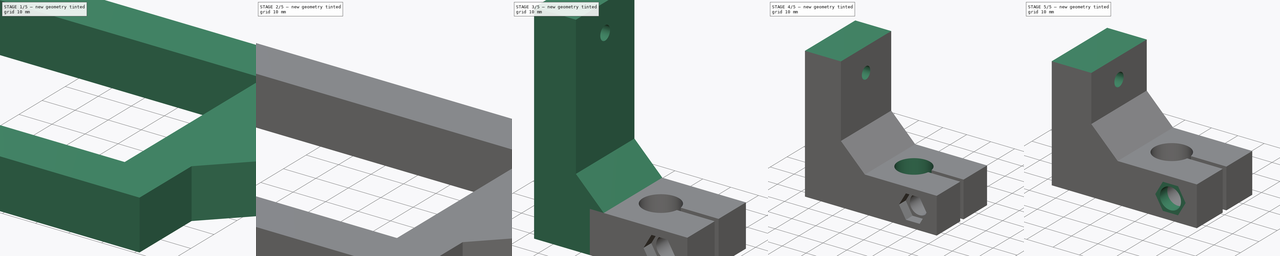
[diagram: build sequence overview — one tinted view per stage of 5, left to right]
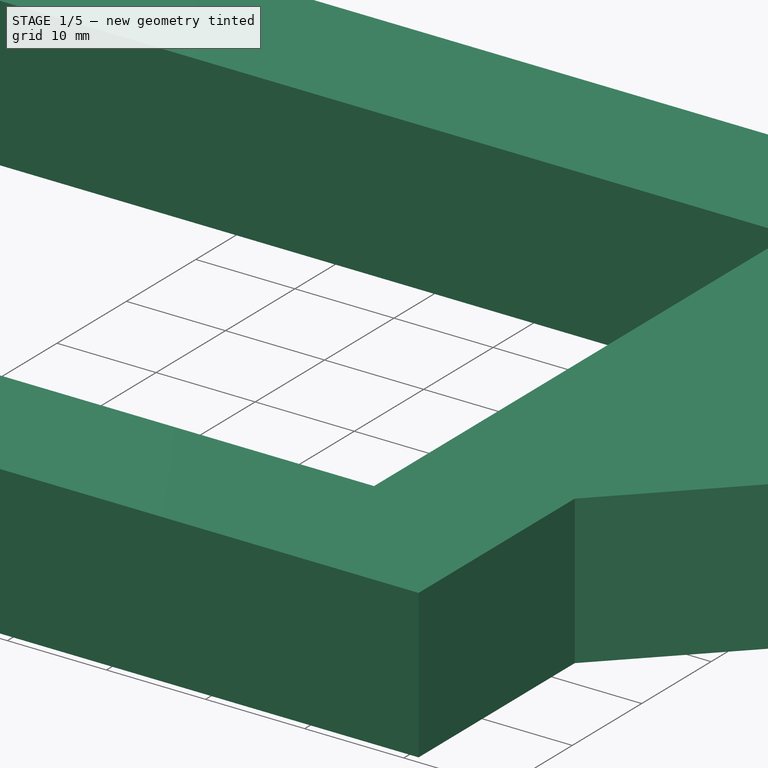
[diagram: stage 1 of 5 — iso view after this stage's code; geometry added in this stage tinted green]
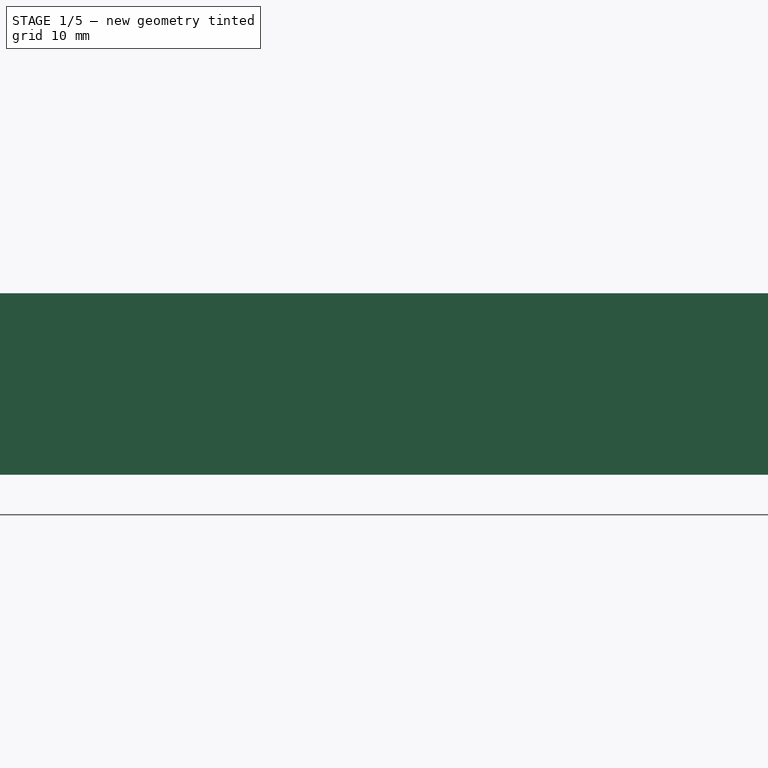
[diagram: stage 1 of 5 — front view after this stage's code; geometry added in this stage tinted green]
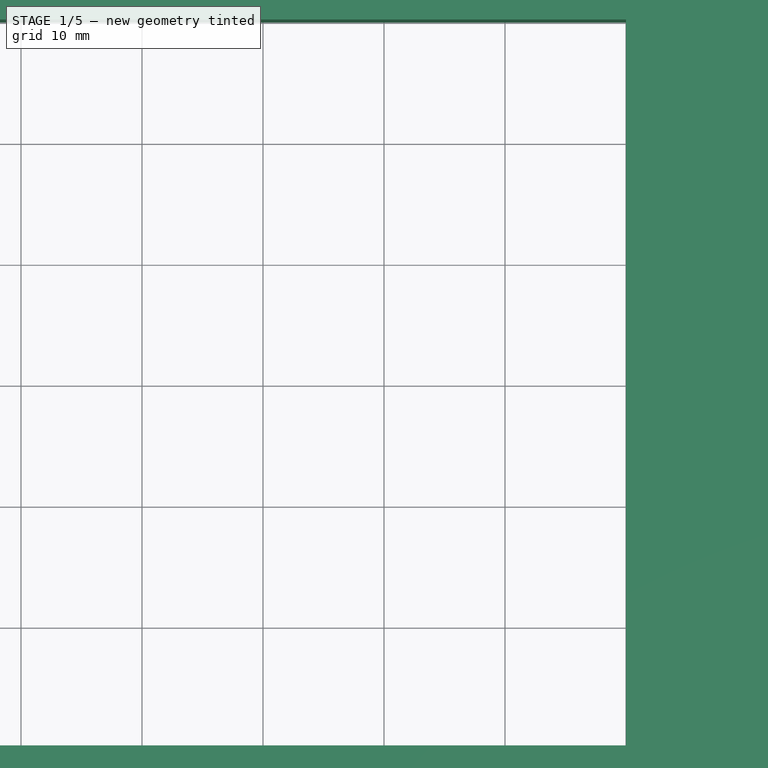
[diagram: stage 1 of 5 — top view after this stage's code; geometry added in this stage tinted green]
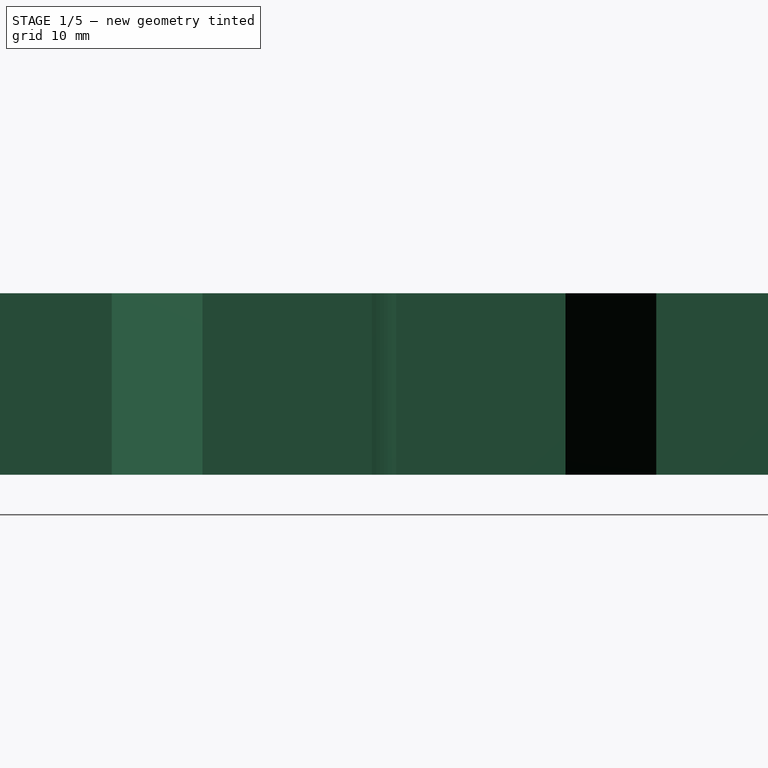
[diagram: stage 1 of 5 — right view after this stage's code; geometry added in this stage tinted green]
FCSTD DOCUMENT  (FreeCAD 0.16R6712 (Git))
Label: LCM camholder10
License: All rights reserved
LicenseURL: http://en.wikipedia.org/wiki/All_rights_reserved
objects: Sketcher::SketchObject×21, PartDesign::Pocket×12, PartDesign::Pad×9
note: 63 computed .brp shape members not serialized (recipe doc carries the construction recipe); baked Part::Feature solids carry a one-line shape summary decoded from their .brp

FEATURE [Sketcher::SketchObject] Sketch
  sketch-geometry (24):
    g0: ArcOfCircle CenterX=0 CenterY=0 CenterZ=0 NormalX=0 NormalY=0 NormalZ=1 Radius=6.5 StartAngle=0.15446 EndAngle=6.12873
    g1: LineSegment StartX=-15 StartY=15 StartZ=0 EndX=20 EndY=15 EndZ=0
    g2: LineSegment StartX=20 StartY=15 StartZ=0 EndX=20 EndY=1 EndZ=0
    g3: LineSegment StartX=20 StartY=-15 StartZ=0 EndX=-15 EndY=-15 EndZ=0
    g4: LineSegment StartX=-15 StartY=-15 StartZ=0 EndX=-15 EndY=-7.5 EndZ=0
    g5: LineSegment StartX=6.42262 StartY=1 StartZ=0 EndX=20 EndY=1 EndZ=0
    g6: LineSegment StartX=6.42262 StartY=-1 StartZ=0 EndX=20 EndY=-1 EndZ=0
    g7: LineSegment StartX=20 StartY=-1 StartZ=0 EndX=20 EndY=-15 EndZ=0
    g8: LineSegment StartX=-30 StartY=7.5 StartZ=0 EndX=-15 EndY=7.5 EndZ=0
    g9: LineSegment StartX=-30 StartY=-7.5 StartZ=0 EndX=-15 EndY=-7.5 EndZ=0
    g10: LineSegment StartX=-45 StartY=22.5 StartZ=0 EndX=-45 EndY=45 EndZ=0
    g11: LineSegment StartX=-45 StartY=-22.5 StartZ=0 EndX=-45 EndY=-45 EndZ=0
    g12: LineSegment StartX=-60 StartY=30 StartZ=0 EndX=-60 EndY=2.33041 EndZ=0
    g13: LineSegment StartX=-60 StartY=-7.21716 StartZ=0 EndX=-60 EndY=-30 EndZ=0
    g14: LineSegment StartX=-180 StartY=45 StartZ=0 EndX=-45 EndY=45 EndZ=0
    g15: LineSegment StartX=-180 StartY=-45 StartZ=0 EndX=-45 EndY=-45 EndZ=0
    g16: LineSegment StartX=-180 StartY=45 StartZ=0 EndX=-180 EndY=-45 EndZ=0
    g17: LineSegment StartX=-165 StartY=30 StartZ=0 EndX=-60 EndY=30 EndZ=0
    g18: LineSegment StartX=-165 StartY=-30 StartZ=0 EndX=-60 EndY=-30 EndZ=0
    g19: LineSegment StartX=-165 StartY=30 StartZ=0 EndX=-165 EndY=-30 EndZ=0
    g20: LineSegment StartX=-15 StartY=7.5 StartZ=0 EndX=-15 EndY=15 EndZ=0
    g21: LineSegment StartX=-60 StartY=2.33041 StartZ=0 EndX=-60 EndY=-7.21716 EndZ=0
    g22: LineSegment StartX=-45 StartY=22.5 StartZ=0 EndX=-30 EndY=7.5 EndZ=0
    g23: LineSegment StartX=-45 StartY=-22.5 StartZ=0 EndX=-30 EndY=-7.5 EndZ=0
  constraints (68):
    c: Coincident(g0,g-1)
    c: Radius(g0) = 6.5
    c: Coincident(g1,g2)
    c: Coincident(g7,g3)
    c: Coincident(g3,g4)
    c: Coincident(g20,g1)
    c: Horizontal(g1)
    c: Horizontal(g3)
    c: Vertical(g2)
    c: Vertical(g4)
    c: DistanceY(g7,g2) = 30
    c: DistanceY(g-1,g1) = 15
    c: DistanceX(g1,g1) = 35
    c: DistanceX(g1,g-1) = 15
    c: Horizontal(g5)
    c: Horizontal(g6)
    c: Coincident(g2,g5)
    c: Coincident(g7,g6)
    c: Tangent(g2,g7)
    c: Coincident(g0,g5)
    c: Coincident(g0,g6)
    c: Horizontal(g8)
    c: Horizontal(g9)
    c: DistanceX(g12,g-1) = 60
    c: DistanceX(g13,g-1) = 60
    c: Vertical(g10)
    c: Vertical(g11)
    c: DistanceY(g-1,g10) = 45
    c: DistanceY(g11,g-1) = 45
    c: Vertical(g12)
    c: Vertical(g13)
    c: DistanceY(g12,g10) = 15
    c: DistanceY(g11,g13) = 15
    c: Horizontal(g14)
    c: Coincident(g14,g10)
    c: DistanceX(g14,g-1) = 180
    c: Horizontal(g15)
    c: Coincident(g15,g11)
    c: DistanceX(g15,g-1) = 180
    c: Vertical(g16)
    c: Coincident(g16,g14)
    c: Coincident(g16,g15)
    c: Horizontal(g17)
    c: Coincident(g17,g12)
    c: DistanceX(g14,g17) = 15
    c: Horizontal(g18)
    c: Coincident(g18,g13)
    c: DistanceX(g15,g18) = 15
    c: Vertical(g19)
    c: Coincident(g19,g17)
    c: Coincident(g18,g19)
    c: Coincident(g4,g9)
    c: Coincident(g20,g8)
    c: Tangent(g4,g20)
    c: Vertical(g21)
    c: Coincident(g21,g12)
    c: Coincident(g21,g13)
    c: DistanceX(g12,g10) = 15
    c: DistanceX(g13,g11) = 15
    c: Angle(g22) = -0.785398
    c: DistanceY(g-1,g8) = 7.5
    c: DistanceY(g4,g-1) = 7.5
    c: Coincident(g8,g22)
    c: Coincident(g10,g22)
    c: Angle(g23) = 0.785398
    c: DistanceY(g23,g4) = 0
    c: PointOnObject(g9,g23)
    c: Coincident(g11,g23)
FEATURE [PartDesign::Pad] Pad
  Length = 15
  Length2 = 100
  Sketch = -> Sketch
  Type = 0
FEATURE [Sketcher::SketchObject] Sketch001
  ExternalGeometry = -> [Pad]
  Placement = pos=(0,0,15) rot=(0,0,1;0rad)
  Support = -> Pad [Face26]
  sketch-geometry (6):
    g0: LineSegment StartX=-165 StartY=30 StartZ=0 EndX=-165 EndY=20 EndZ=0
    g1: LineSegment StartX=-150 StartY=30 StartZ=0 EndX=-165 EndY=20 EndZ=0
    g2: LineSegment StartX=-165 StartY=30 StartZ=0 EndX=-150 EndY=30 EndZ=0
    g3: LineSegment StartX=-165 StartY=-20 StartZ=0 EndX=-165 EndY=-30 EndZ=0
    g4: LineSegment StartX=-165 StartY=-30 StartZ=0 EndX=-150 EndY=-30 EndZ=0
    g5: LineSegment StartX=-165 StartY=-20 StartZ=0 EndX=-150 EndY=-30 EndZ=0
  constraints (16):
    c: Vertical(g0)
    c: Horizontal(g2)
    c: Coincident(g2,g0)
    c: Coincident(g2,g1)
    c: Coincident(g0,g1)
    c: DistanceY(g0,g0) = 10
    c: DistanceX(g2,g2) = 15
    c: Coincident(g0,g-3)
    c: Vertical(g3)
    c: Horizontal(g4)
    c: Coincident(g3,g4)
    c: Coincident(g3,g5)
    c: Coincident(g4,g5)
    c: DistanceX(g4,g4) = 15
    c: DistanceY(g3,g3) = 10
    c: Coincident(g3,g-3)
FEATURE [PartDesign::Pad] Pad001
  Length = 15
  Length2 = 100
  Reversed = true
  Sketch = -> Sketch001
  Type = 0
FEATURE [Sketcher::SketchObject] Sketch002
  ExternalGeometry = -> [Pad001]
  Placement = pos=(0,-15,0) rot=(1,0,0;1.5708rad)
  Support = -> Pad001 [Face20]
  sketch-geometry (1):
    g0: Circle CenterX=10 CenterY=7.5 CenterZ=0 NormalX=0 NormalY=0 NormalZ=1 Radius=4
  constraints (3):
    c: Radius(g0) = 4
    c: DistanceX(g0,g-3) = 10
    c: DistanceY(g-3,g0) = 7.5
FEATURE [PartDesign::Pocket] Pocket
  Length = 30
  Sketch = -> Sketch002
  Type = 0
FEATURE [Sketcher::SketchObject] Sketch003
  ExternalGeometry = -> [Pocket]
  Placement = pos=(0,-15,0) rot=(1,0,0;1.5708rad)
  Support = -> Pocket [Face20]
  sketch-geometry (7):
    g0: LineSegment StartX=12.875 StartY=2.52035 StartZ=0 EndX=15.75 EndY=7.5 EndZ=0
    g1: LineSegment StartX=15.75 StartY=7.5 StartZ=0 EndX=12.875 EndY=12.4796 EndZ=0
    g2: LineSegment StartX=12.875 StartY=12.4796 StartZ=0 EndX=7.125 EndY=12.4796 EndZ=0
    g3: LineSegment StartX=7.125 StartY=12.4796 StartZ=0 EndX=4.25 EndY=7.5 EndZ=0
    g4: LineSegment StartX=4.25 StartY=7.5 StartZ=0 EndX=7.125 EndY=2.52035 EndZ=0
    g5: LineSegment StartX=7.125 StartY=2.52035 StartZ=0 EndX=12.875 EndY=2.52035 EndZ=0
    g6: Circle [constr] CenterX=10 CenterY=7.5 CenterZ=0 NormalX=0 NormalY=0 NormalZ=1 Radius=5.75
  constraints (16):
    c: Coincident(g0,g1)
    c: Coincident(g1,g2)
    c: Coincident(g2,g3)
    c: Coincident(g3,g4)
    c: Coincident(g4,g5)
    c: Coincident(g5,g0)
    c: Equal(g0, g1-g5) x5
    c: PointOnObject(g0,g6)
    c: PointOnObject(g1,g6)
    c: PointOnObject(g2,g6)
    c: PointOnObject(g3,g6)
    c: PointOnObject(g4,g6)
    c: PointOnObject(g5,g6)
    c: Radius(g6) = 5.75
    c: Coincident(g6,g-3)
    c: Angle(g2) = 3.14159
FEATURE [PartDesign::Pocket] Pocket001
  Length = 4
  Sketch = -> Sketch003
  Type = 0
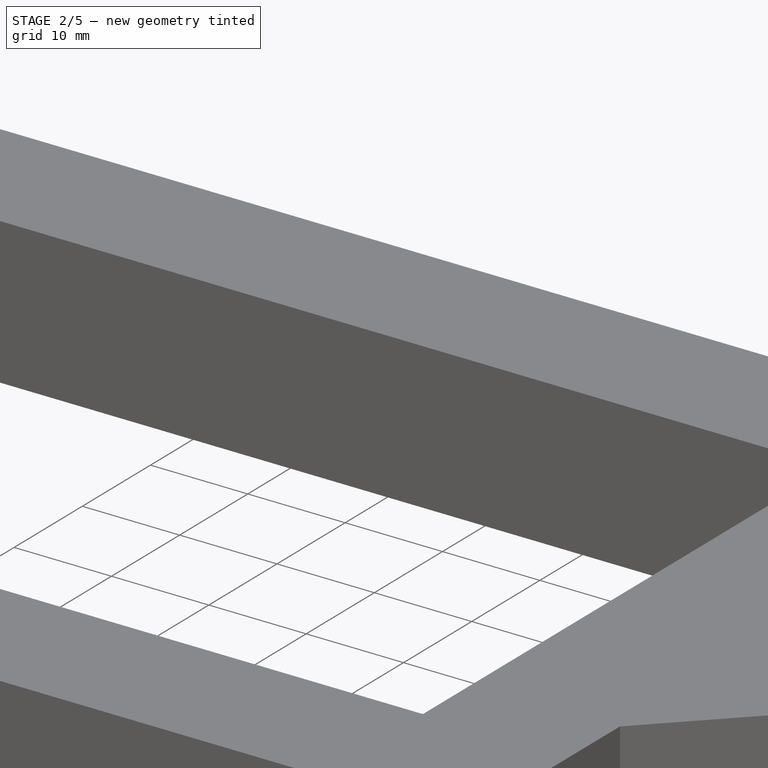
[diagram: stage 2 of 5 — iso view after this stage's code; geometry added in this stage tinted green]
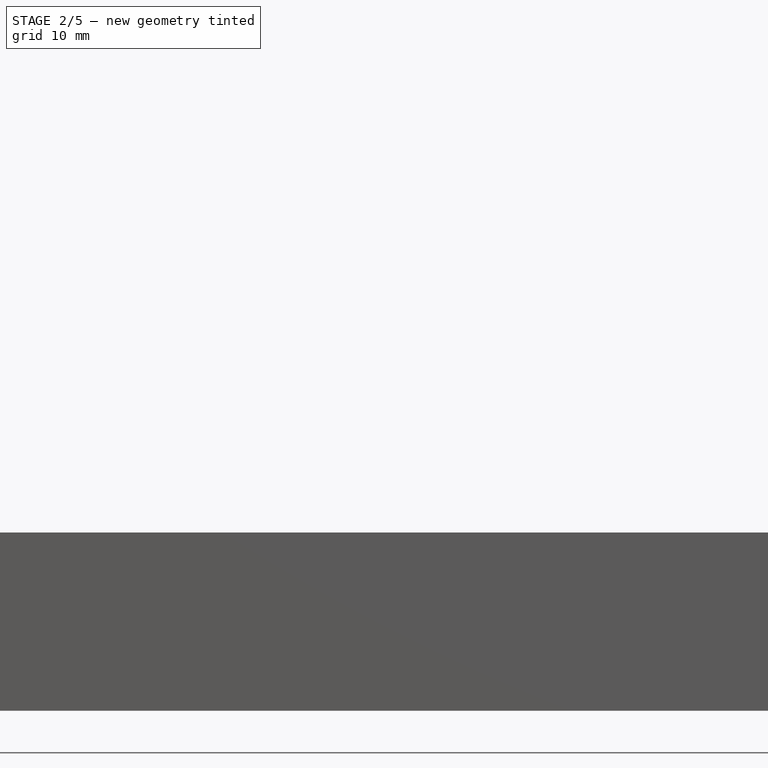
[diagram: stage 2 of 5 — front view after this stage's code; geometry added in this stage tinted green]
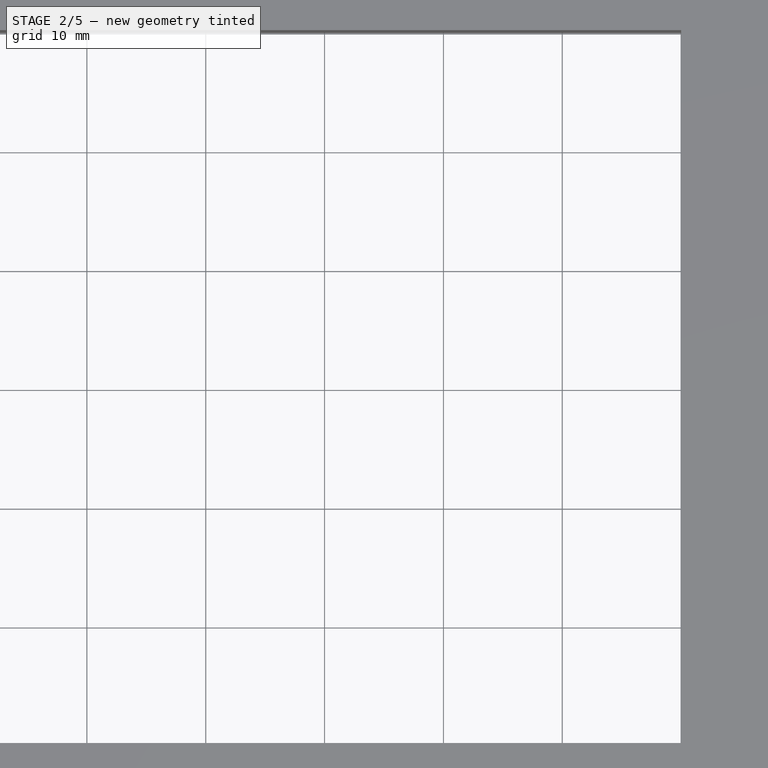
[diagram: stage 2 of 5 — top view after this stage's code; geometry added in this stage tinted green]
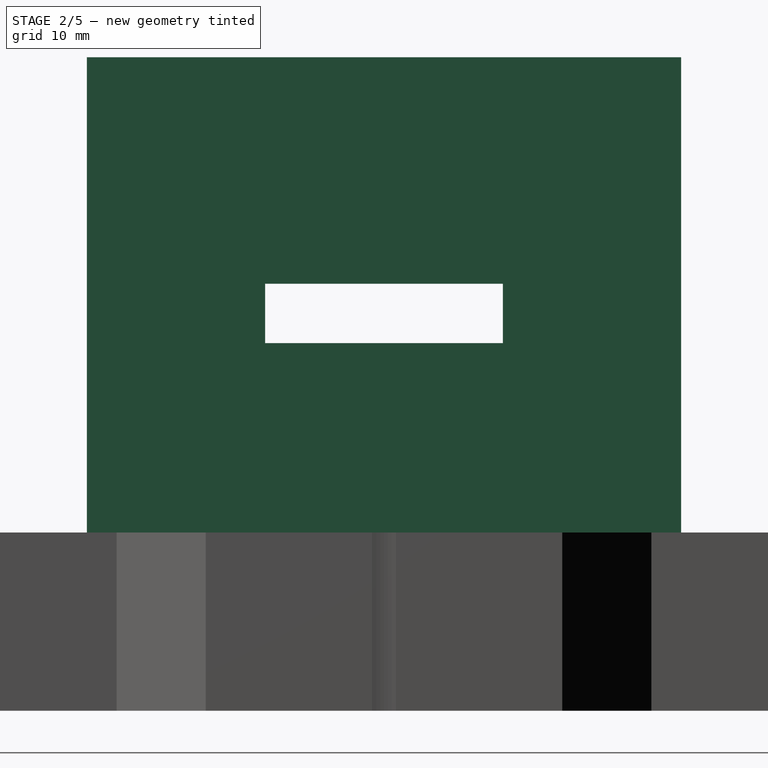
[diagram: stage 2 of 5 — right view after this stage's code; geometry added in this stage tinted green]
FEATURE [Sketcher::SketchObject] Sketch004
  ExternalGeometry = -> [Pocket001]
  Placement = pos=(0,0,15) rot=(0,0,1;0rad)
  Support = -> Pocket001 [Face5]
  sketch-geometry (4):
    g0: LineSegment StartX=-180 StartY=25 StartZ=0 EndX=-165 EndY=25 EndZ=0
    g1: LineSegment StartX=-165 StartY=25 StartZ=0 EndX=-165 EndY=-25 EndZ=0
    g2: LineSegment StartX=-165 StartY=-25 StartZ=0 EndX=-180 EndY=-25 EndZ=0
    g3: LineSegment StartX=-180 StartY=-25 StartZ=0 EndX=-180 EndY=25 EndZ=0
  constraints (12):
    c: Coincident(g0,g1)
    c: Coincident(g1,g2)
    c: Coincident(g2,g3)
    c: Coincident(g3,g0)
    c: Horizontal(g0)
    c: Horizontal(g2)
    c: Vertical(g1)
    c: Vertical(g3)
    c: DistanceX(g2,g2) = 15
    c: DistanceY(g1,g1) = 50
    c: DistanceX(g-3,g0) = 0
    c: DistanceY(g-1,g0) = 25
FEATURE [PartDesign::Pad] Pad002
  Length = 40
  Length2 = 100
  Sketch = -> Sketch004
  Type = 0
FEATURE [Sketcher::SketchObject] Sketch005
  ExternalGeometry = -> [Pad002]
  Placement = pos=(0,25,0) rot=(0,0.707107,0.707107;3.14159rad)
  Support = -> Pad002 [Face29]
  sketch-geometry (4):
    g0: LineSegment StartX=180 StartY=25 StartZ=0 EndX=190 EndY=15 EndZ=0
    g1: LineSegment StartX=180 StartY=0 StartZ=0 EndX=190 EndY=0 EndZ=0
    g2: LineSegment StartX=190 StartY=15 StartZ=0 EndX=190 EndY=0 EndZ=0
    g3: LineSegment StartX=180 StartY=25 StartZ=0 EndX=180 EndY=0 EndZ=0
  constraints (11):
    c: Horizontal(g1)
    c: Vertical(g2)
    c: Coincident(g2,g1)
    c: DistanceY(g2,g2) = 15
    c: Coincident(g0,g2)
    c: Vertical(g3)
    c: Coincident(g3,g0)
    c: Coincident(g1,g3)
    c: DistanceY(g0,g0) = 10
    c: DistanceX(g1,g1) = 10
    c: Coincident(g1,g-3)
FEATURE [PartDesign::Pad] Pad003
  Length = 50
  Length2 = 100
  Reversed = true
  Sketch = -> Sketch005
  Type = 0
FEATURE [Sketcher::SketchObject] Sketch006
  Placement = pos=(-165,0,0) rot=(0.57735,0.57735,0.57735;2.0944rad)
  Support = -> Pad003 [Face47]
  sketch-geometry (4):
    g0: LineSegment StartX=-10 StartY=35.9344 StartZ=0 EndX=10 EndY=35.9344 EndZ=0
    g1: LineSegment StartX=10 StartY=35.9344 StartZ=0 EndX=10 EndY=30.9344 EndZ=0
    g2: LineSegment StartX=10 StartY=30.9344 StartZ=0 EndX=-10 EndY=30.9344 EndZ=0
    g3: LineSegment StartX=-10 StartY=30.9344 StartZ=0 EndX=-10 EndY=35.9344 EndZ=0
  constraints (11):
    c: Coincident(g0,g1)
    c: Coincident(g1,g2)
    c: Coincident(g2,g3)
    c: Coincident(g3,g0)
    c: Horizontal(g0)
    c: Horizontal(g2)
    c: Vertical(g1)
    c: Vertical(g3)
    c: DistanceY(g3,g3) = 5
    c: DistanceX(g0,g0) = 20
    c: DistanceX(g0,g-1) = 10
FEATURE [PartDesign::Pocket] Pocket002
  Length = 15
  Sketch = -> Sketch006
  Type = 0
FEATURE [Sketcher::SketchObject] Sketch007
  Placement = pos=(-165,0,0) rot=(0.57735,0.57735,0.57735;2.0944rad)
  Support = -> Pocket002 [Face47]
  sketch-geometry (4):
    g0: LineSegment StartX=-15 StartY=37.3915 StartZ=0 EndX=15 EndY=37.3915 EndZ=0
    g1: LineSegment StartX=15 StartY=37.3915 StartZ=0 EndX=15 EndY=30.1915 EndZ=0
    g2: LineSegment StartX=15 StartY=30.1915 StartZ=0 EndX=-15 EndY=30.1915 EndZ=0
    g3: LineSegment StartX=-15 StartY=30.1915 StartZ=0 EndX=-15 EndY=37.3915 EndZ=0
  constraints (11):
    c: Coincident(g0,g1)
    c: Coincident(g1,g2)
    c: Coincident(g2,g3)
    c: Coincident(g3,g0)
    c: Horizontal(g0)
    c: Horizontal(g2)
    c: Vertical(g1)
    c: Vertical(g3)
    c: DistanceY(g3,g3) = 7.2
    c: DistanceX(g0,g0) = 30
    c: DistanceX(g0,g-1) = 15
FEATURE [PartDesign::Pocket] Pocket003
  Length = 3
  Sketch = -> Sketch007
  Type = 0
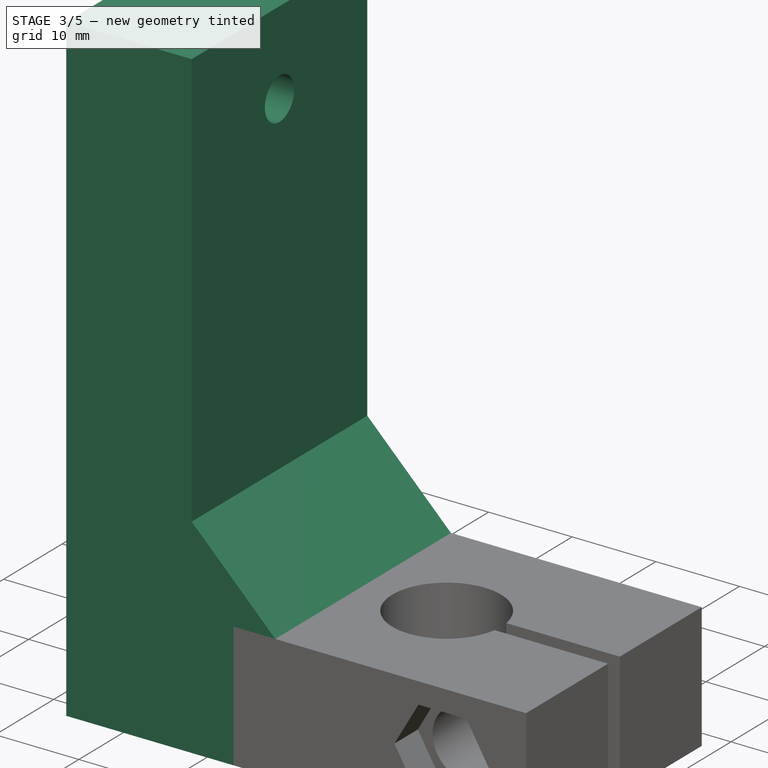
[diagram: stage 3 of 5 — iso view after this stage's code; geometry added in this stage tinted green]
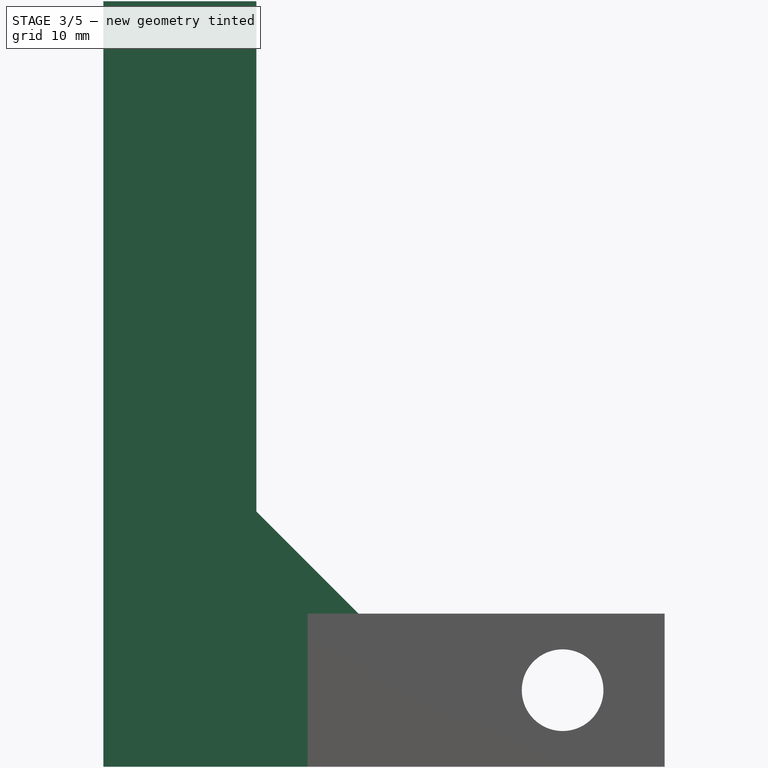
[diagram: stage 3 of 5 — front view after this stage's code; geometry added in this stage tinted green]
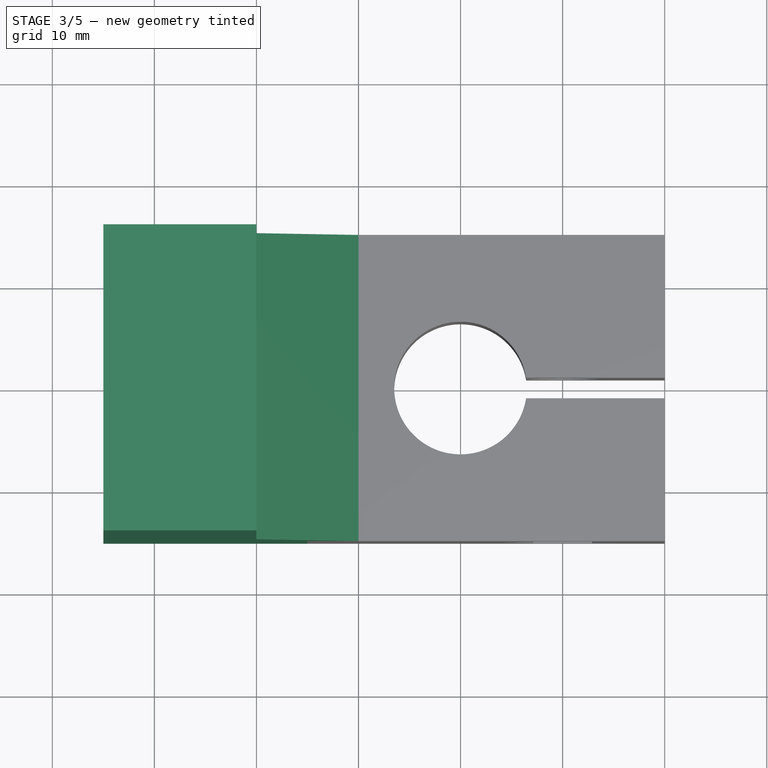
[diagram: stage 3 of 5 — top view after this stage's code; geometry added in this stage tinted green]
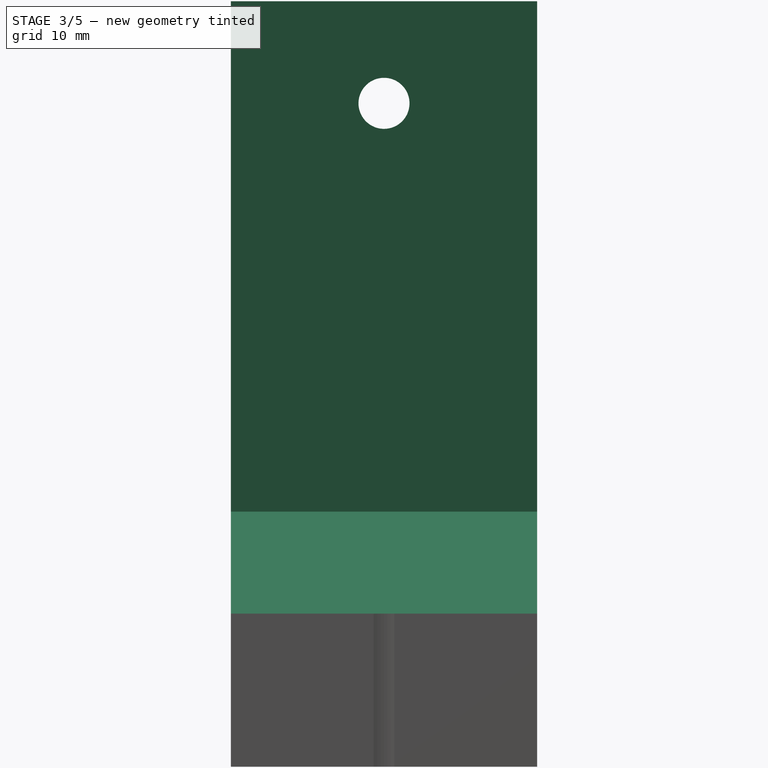
[diagram: stage 3 of 5 — right view after this stage's code; geometry added in this stage tinted green]
FEATURE [Sketcher::SketchObject] Sketch008
  ExternalGeometry = -> [Pocket003]
  Placement = pos=(0,45,0) rot=(0,0.707107,0.707107;3.14159rad)
  Support = -> Pocket003 [Face6]
  sketch-geometry (4):
    g0: LineSegment StartX=30 StartY=63.4374 StartZ=0 EndX=203.297 EndY=63.4374 EndZ=0
    g1: LineSegment StartX=203.297 StartY=63.4374 StartZ=0 EndX=203.297 EndY=0 EndZ=0
    g2: LineSegment StartX=203.297 StartY=0 StartZ=0 EndX=30 EndY=0 EndZ=0
    g3: LineSegment StartX=30 StartY=0 StartZ=0 EndX=30 EndY=63.4374 EndZ=0
  constraints (9):
    c: Coincident(g0,g1)
    c: Coincident(g1,g2)
    c: Coincident(g2,g3)
    c: Coincident(g3,g0)
    c: Horizontal(g0)
    c: Horizontal(g2)
    c: Vertical(g1)
    c: Vertical(g3)
    c: Coincident(g2,g-3)
FEATURE [PartDesign::Pocket] Pocket004
  Length = 100
  Sketch = -> Sketch008
  Type = 0
FEATURE [Sketcher::SketchObject] Sketch009
  ExternalGeometry = -> [Pocket004]
  Placement = pos=(0,0,15) rot=(0,0,1;0rad)
  Support = -> Pocket004 [Face4]
  sketch-geometry (4):
    g0: LineSegment StartX=-35 StartY=15 StartZ=0 EndX=-15 EndY=15 EndZ=0
    g1: LineSegment StartX=-15 StartY=15 StartZ=0 EndX=-15 EndY=-15 EndZ=0
    g2: LineSegment StartX=-15 StartY=-15 StartZ=0 EndX=-35 EndY=-15 EndZ=0
    g3: LineSegment StartX=-35 StartY=-15 StartZ=0 EndX=-35 EndY=15 EndZ=0
  constraints (11):
    c: Coincident(g0,g1)
    c: Coincident(g1,g2)
    c: Coincident(g2,g3)
    c: Coincident(g3,g0)
    c: Horizontal(g0)
    c: Horizontal(g2)
    c: Vertical(g1)
    c: Vertical(g3)
    c: DistanceX(g0,g0) = 20
    c: DistanceY(g3,g3) = 30
    c: Coincident(g0,g-3)
FEATURE [PartDesign::Pad] Pad004
  Length = 15
  Length2 = 100
  Reversed = true
  Sketch = -> Sketch009
  Type = 0
FEATURE [Sketcher::SketchObject] Sketch010
  ExternalGeometry = -> [Pad004]
  Placement = pos=(0,0,15) rot=(0,0,1;0rad)
  Support = -> Pad004 [Face20]
  sketch-geometry (4):
    g0: LineSegment StartX=-35 StartY=15 StartZ=0 EndX=-20 EndY=15 EndZ=0
    g1: LineSegment StartX=-20 StartY=15 StartZ=0 EndX=-20 EndY=-15 EndZ=0
    g2: LineSegment StartX=-20 StartY=-15 StartZ=0 EndX=-35 EndY=-15 EndZ=0
    g3: LineSegment StartX=-35 StartY=-15 StartZ=0 EndX=-35 EndY=15 EndZ=0
  constraints (11):
    c: Coincident(g0,g1)
    c: Coincident(g1,g2)
    c: Coincident(g2,g3)
    c: Coincident(g3,g0)
    c: Horizontal(g0)
    c: Horizontal(g2)
    c: Vertical(g1)
    c: Vertical(g3)
    c: DistanceX(g0,g0) = 15
    c: DistanceY(g3,g3) = 30
    c: Coincident(g-3,g0)
FEATURE [PartDesign::Pad] Pad005
  Length = 60
  Length2 = 100
  Sketch = -> Sketch010
  Type = 0
FEATURE [Sketcher::SketchObject] Sketch011
  ExternalGeometry = -> [Pad005]
  Placement = pos=(-20,0,0) rot=(0.57735,0.57735,0.57735;2.0944rad)
  Support = -> Pad005 [Face28]
  sketch-geometry (1):
    g0: Circle CenterX=0 CenterY=65 CenterZ=0 NormalX=0 NormalY=0 NormalZ=1 Radius=2.5
  constraints (3):
    c: Radius(g0) = 2.5
    c: DistanceX(g-1,g0) = 0
    c: DistanceY(g0,g-3) = 10
FEATURE [PartDesign::Pocket] Pocket005
  Length = 15
  Sketch = -> Sketch011
  Type = 0
FEATURE [Sketcher::SketchObject] Sketch012
  ExternalGeometry = -> [Pocket005]
  Placement = pos=(0,15,0) rot=(0,0.707107,0.707107;3.14159rad)
  Support = -> Pocket005 [Face31]
  sketch-geometry (3):
    g0: LineSegment StartX=10 StartY=15 StartZ=0 EndX=20 EndY=25 EndZ=0
    g1: LineSegment StartX=20 StartY=25 StartZ=0 EndX=20 EndY=15 EndZ=0
    g2: LineSegment StartX=10 StartY=15 StartZ=0 EndX=20 EndY=15 EndZ=0
  constraints (8):
    c: Vertical(g1)
    c: Horizontal(g2)
    c: Coincident(g1,g2)
    c: Coincident(g0,g2)
    c: Coincident(g0,g1)
    c: DistanceX(g2,g2) = 10
    c: DistanceY(g1,g1) = 10
    c: Coincident(g1,g-3)
FEATURE [PartDesign::Pad] Pad006
  Length = 30
  Length2 = 100
  Reversed = true
  Sketch = -> Sketch012
  Type = 0
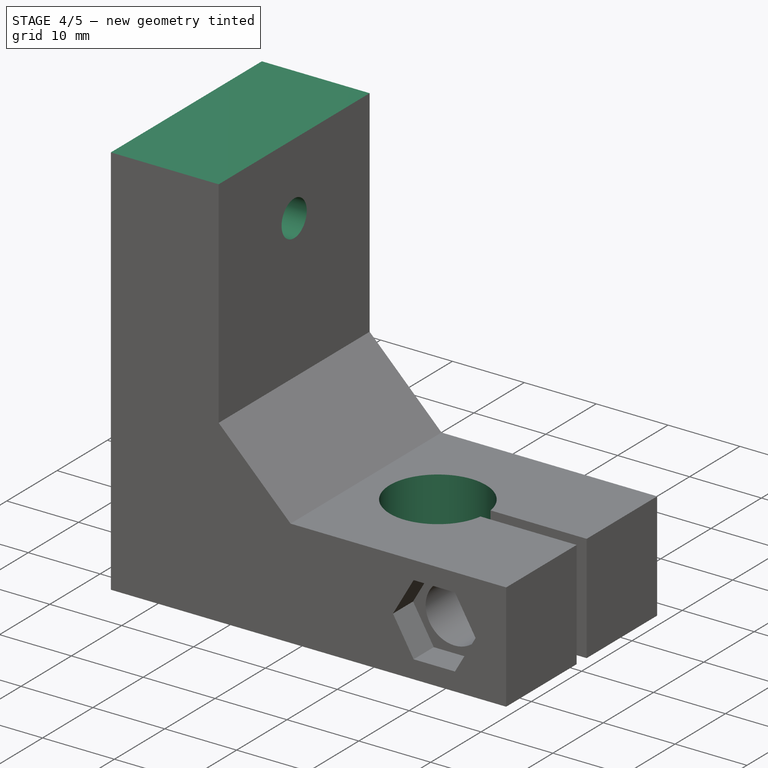
[diagram: stage 4 of 5 — iso view after this stage's code; geometry added in this stage tinted green]
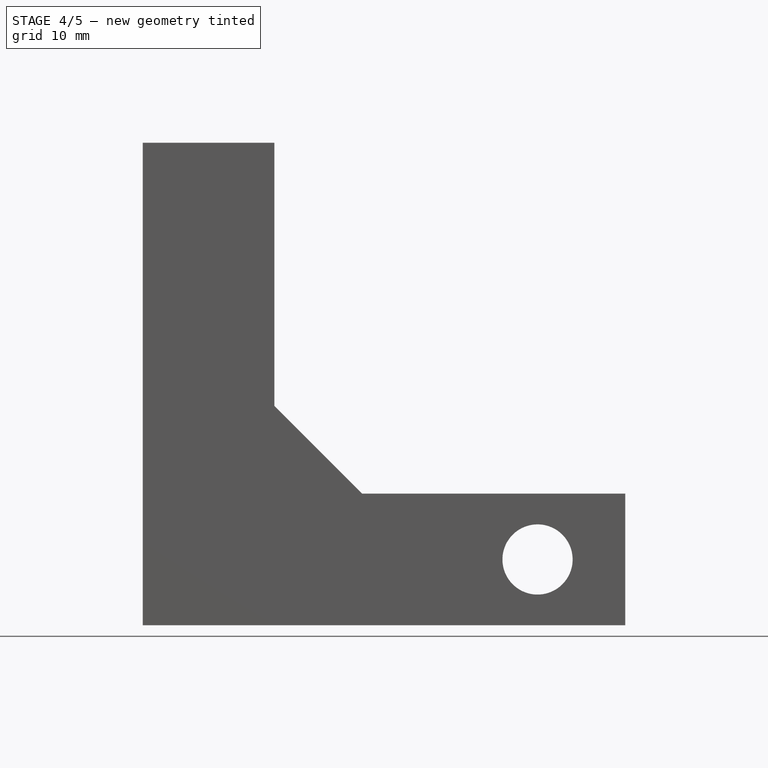
[diagram: stage 4 of 5 — front view after this stage's code; geometry added in this stage tinted green]
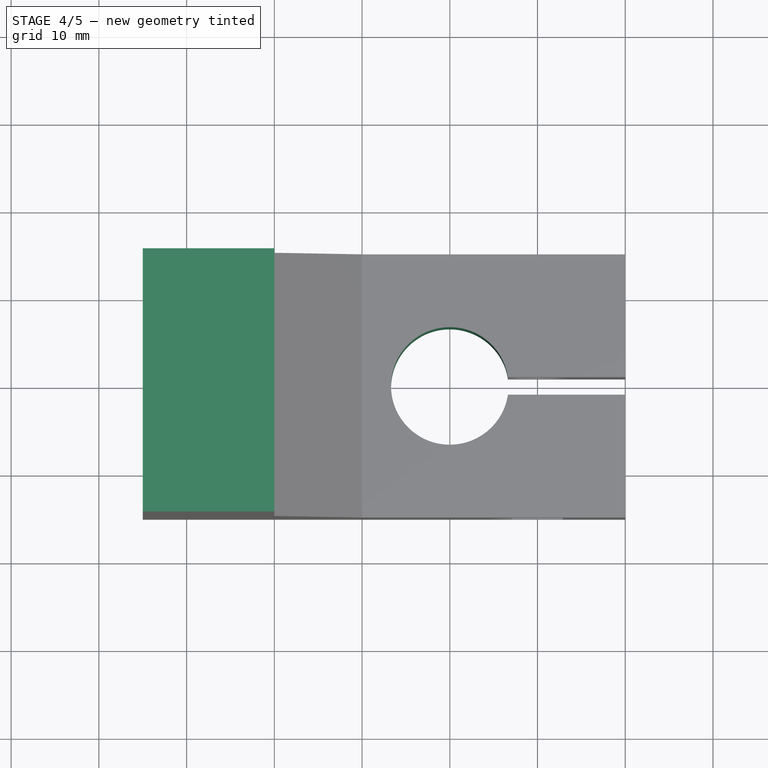
[diagram: stage 4 of 5 — top view after this stage's code; geometry added in this stage tinted green]
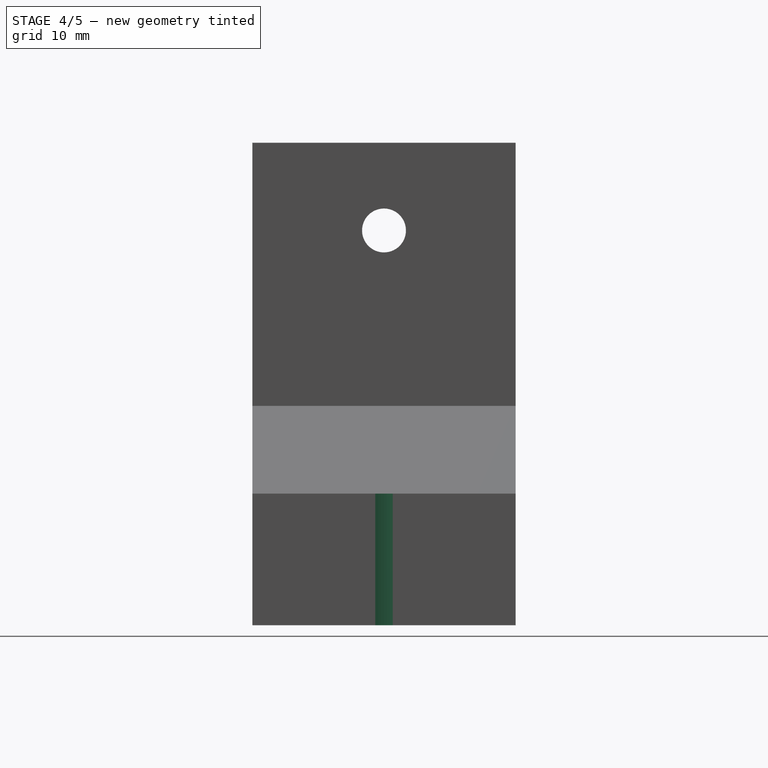
[diagram: stage 4 of 5 — right view after this stage's code; geometry added in this stage tinted green]
FEATURE [Sketcher::SketchObject] Sketch013
  ExternalGeometry = -> [Pad006]
  Placement = pos=(0,-15,0) rot=(1,0,0;1.5708rad)
  Support = -> Pad006 [Face24]
  sketch-geometry (4):
    g0: LineSegment StartX=-35 StartY=75 StartZ=0 EndX=-20 EndY=75 EndZ=0
    g1: LineSegment StartX=-20 StartY=75 StartZ=0 EndX=-20 EndY=55 EndZ=0
    g2: LineSegment StartX=-20 StartY=55 StartZ=0 EndX=-35 EndY=55 EndZ=0
    g3: LineSegment StartX=-35 StartY=55 StartZ=0 EndX=-35 EndY=75 EndZ=0
  constraints (11):
    c: Coincident(g0,g1)
    c: Coincident(g1,g2)
    c: Coincident(g2,g3)
    c: Coincident(g3,g0)
    c: Horizontal(g0)
    c: Horizontal(g2)
    c: Vertical(g1)
    c: Vertical(g3)
    c: DistanceY(g1,g1) = 20
    c: DistanceX(g0,g0) = 15
    c: Coincident(g0,g-3)
FEATURE [PartDesign::Pocket] Pocket006
  Length = 30
  Sketch = -> Sketch013
  Type = 0
FEATURE [Sketcher::SketchObject] Sketch014
  ExternalGeometry = -> [Pocket006]
  Placement = pos=(-20,0,0) rot=(0.57735,0.57735,0.57735;2.0944rad)
  Support = -> Pocket006 [Face28]
  sketch-geometry (1):
    g0: Circle CenterX=0 CenterY=45 CenterZ=0 NormalX=0 NormalY=0 NormalZ=1 Radius=2.5
  constraints (3):
    c: Radius(g0) = 2.5
    c: DistanceX(g-1,g0) = 0
    c: DistanceY(g0,g-3) = 10
FEATURE [PartDesign::Pocket] Pocket007
  Length = 15
  Sketch = -> Sketch014
  Type = 0
FEATURE [Sketcher::SketchObject] Sketch015
  Placement = pos=(0,0,0) rot=(1,0,0;3.14159rad)
  Support = -> Pocket007 [Face4]
  sketch-geometry (1):
    g0: Circle CenterX=0 CenterY=0 CenterZ=0 NormalX=0 NormalY=0 NormalZ=1 Radius=6.7
  constraints (1):
    c: Radius(g0) = 6.7
FEATURE [PartDesign::Pocket] Pocket008
  Length = 15
  Sketch = -> Sketch015
  Type = 0
FEATURE [Sketcher::SketchObject] Sketch016
  ExternalGeometry = -> [Pocket008]
  Placement = pos=(0,15,0) rot=(0,0.707107,0.707107;3.14159rad)
  Support = -> Pocket008 [Face20]
  sketch-geometry (7):
    g0: LineSegment StartX=-5.02035 StartY=4.625 StartZ=0 EndX=-5.02035 EndY=10.375 EndZ=0
    g1: LineSegment StartX=-5.02035 StartY=10.375 StartZ=0 EndX=-10 EndY=13.25 EndZ=0
    g2: LineSegment StartX=-10 StartY=13.25 StartZ=0 EndX=-14.9796 EndY=10.375 EndZ=0
    g3: LineSegment StartX=-14.9796 StartY=10.375 StartZ=0 EndX=-14.9796 EndY=4.625 EndZ=0
    g4: LineSegment StartX=-14.9796 StartY=4.625 StartZ=0 EndX=-10 EndY=1.75 EndZ=0
    g5: LineSegment StartX=-10 StartY=1.75 StartZ=0 EndX=-5.02035 EndY=4.625 EndZ=0
    g6: Circle [constr] CenterX=-10 CenterY=7.5 CenterZ=0 NormalX=0 NormalY=0 NormalZ=1 Radius=5.75
  constraints (16):
    c: Coincident(g0,g1)
    c: Coincident(g1,g2)
    c: Coincident(g2,g3)
    c: Coincident(g3,g4)
    c: Coincident(g4,g5)
    c: Coincident(g5,g0)
    c: Equal(g0, g1-g5) x5
    c: PointOnObject(g0,g6)
    c: PointOnObject(g1,g6)
    c: PointOnObject(g2,g6)
    c: PointOnObject(g3,g6)
    c: PointOnObject(g4,g6)
    c: PointOnObject(g5,g6)
    c: Coincident(g6,g-3)
    c: Radius(g6) = 5.75
    c: Angle(g3) = -1.5708
FEATURE [PartDesign::Pocket] Pocket009
  Length = 4
  Sketch = -> Sketch016
  Type = 0
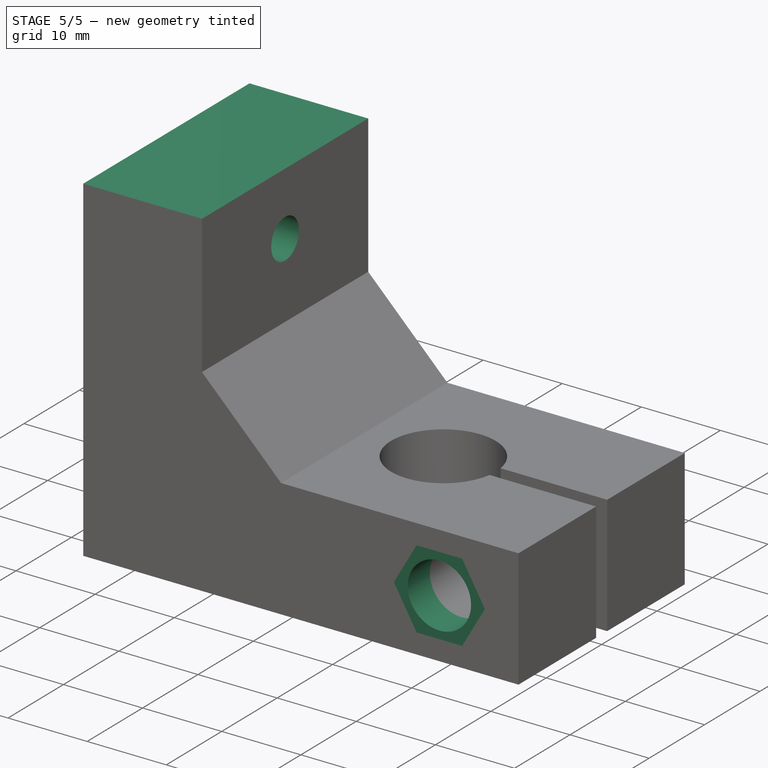
[diagram: stage 5 of 5 — iso view after this stage's code; geometry added in this stage tinted green]
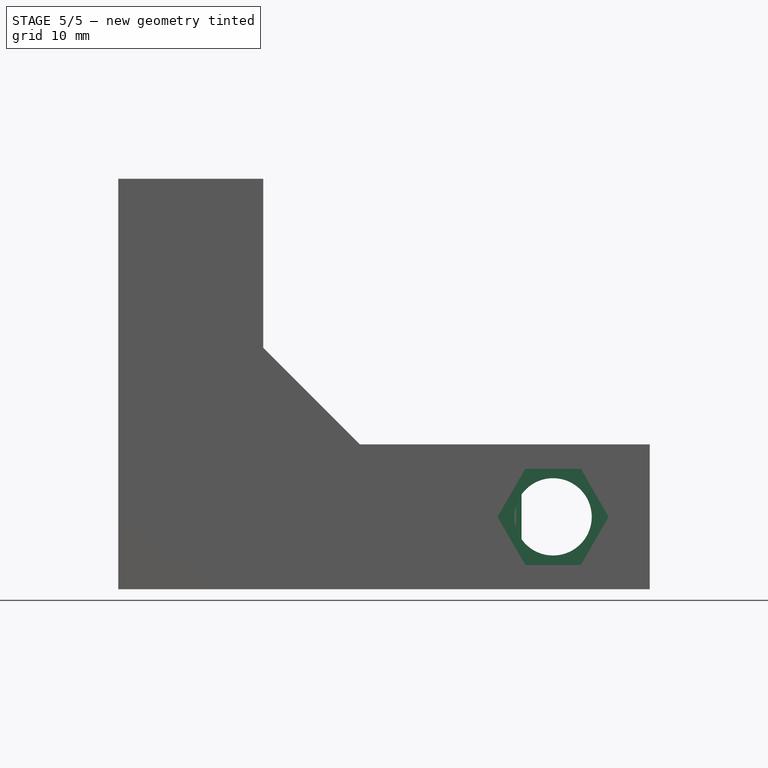
[diagram: stage 5 of 5 — front view after this stage's code; geometry added in this stage tinted green]
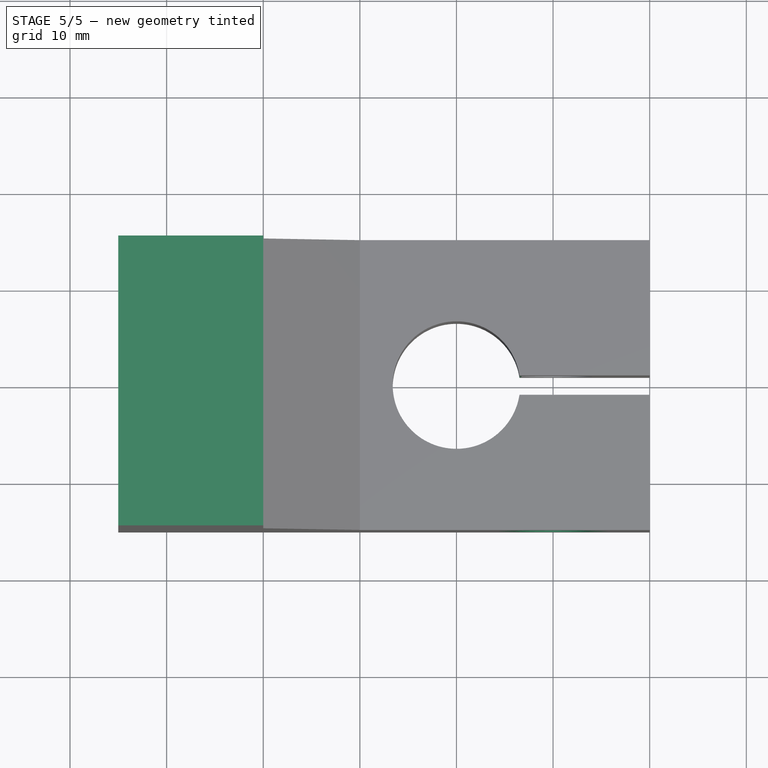
[diagram: stage 5 of 5 — top view after this stage's code; geometry added in this stage tinted green]
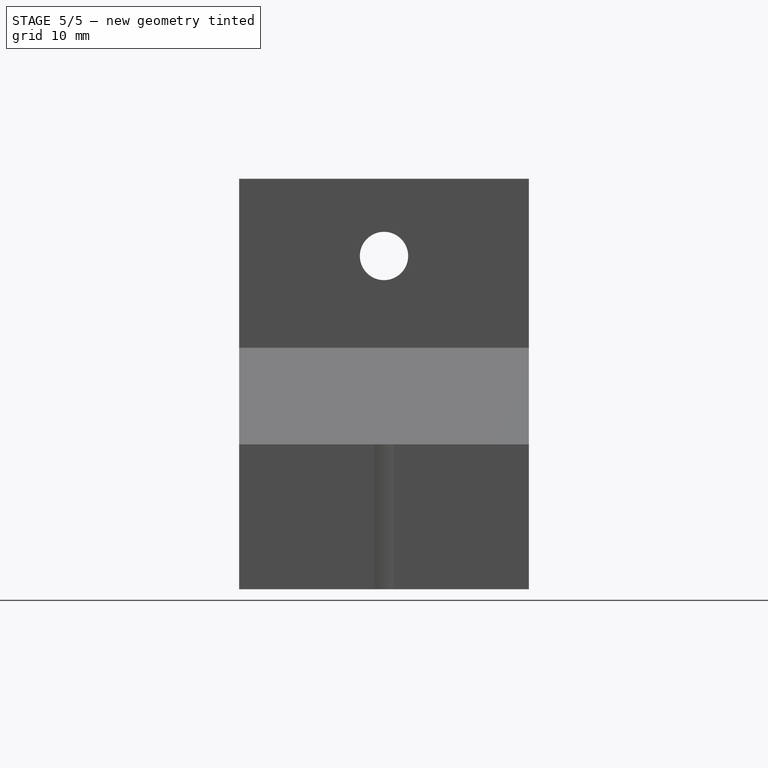
[diagram: stage 5 of 5 — right view after this stage's code; geometry added in this stage tinted green]
FEATURE [Sketcher::SketchObject] Sketch017
  ExternalGeometry = -> [Pocket009]
  Placement = pos=(0,-15,0) rot=(1,0,0;1.5708rad)
  Support = -> Pocket009 [Face3]
  sketch-geometry (2):
    g0: Circle CenterX=10 CenterY=7.5 CenterZ=0 NormalX=0 NormalY=0 NormalZ=1 Radius=4
    g1: Circle CenterX=10 CenterY=7.5 CenterZ=0 NormalX=0 NormalY=0 NormalZ=1 Radius=5.75
  constraints (4):
    c: Coincident(g0,g1)
    c: Coincident(g0,g-3)
    c: Radius(g0) = 4
    c: Radius(g1) = 5.75
FEATURE [PartDesign::Pad] Pad007
  Length = 4
  Length2 = 100
  Reversed = true
  Sketch = -> Sketch017
  Type = 0
FEATURE [Sketcher::SketchObject] Sketch018
  Placement = pos=(0,0,0) rot=(1,0,0;3.14159rad)
  Support = -> Pad007 [Face4]
  sketch-geometry (4):
    g0: ArcOfCircle CenterX=0 CenterY=0 CenterZ=0 NormalX=0 NormalY=0 NormalZ=1 Radius=6.6 StartAngle=0.152101 EndAngle=6.13108
    g1: ArcOfCircle CenterX=0 CenterY=0 CenterZ=0 NormalX=0 NormalY=0 NormalZ=1 Radius=6.8 StartAngle=0.147594 EndAngle=6.13559
    g2: LineSegment StartX=6.5238 StartY=1 StartZ=0 EndX=6.72607 EndY=1 EndZ=0
    g3: LineSegment StartX=6.5238 StartY=-1 StartZ=0 EndX=6.72607 EndY=-1 EndZ=0
  constraints (10):
    c: Coincident(g0,g-1)
    c: Coincident(g1,g-1)
    c: Radius(g0) = 6.6
    c: Radius(g1) = 6.8
    c: Horizontal(g2)
    c: Horizontal(g3)
    c: Coincident(g2,g1)
    c: Coincident(g3,g1)
    c: Coincident(g3,g0)
    c: Coincident(g2,g0)
FEATURE [PartDesign::Pad] Pad008
  Length = 15
  Length2 = 100
  Reversed = true
  Sketch = -> Sketch018
  Type = 0
FEATURE [Sketcher::SketchObject] Sketch019
  ExternalGeometry = -> [Pad008]
  Placement = pos=(-20,0,0) rot=(0.57735,0.57735,0.57735;2.0944rad)
  Support = -> Pad008 [Face44]
  sketch-geometry (4):
    g0: LineSegment StartX=-15 StartY=55 StartZ=0 EndX=15 EndY=55 EndZ=0
    g1: LineSegment StartX=15 StartY=55 StartZ=0 EndX=15 EndY=42.5 EndZ=0
    g2: LineSegment StartX=15 StartY=42.5 StartZ=0 EndX=-15 EndY=42.5 EndZ=0
    g3: LineSegment StartX=-15 StartY=42.5 StartZ=0 EndX=-15 EndY=55 EndZ=0
  constraints (11):
    c: Coincident(g0,g1)
    c: Coincident(g1,g2)
    c: Coincident(g2,g3)
    c: Coincident(g3,g0)
    c: Horizontal(g0)
    c: Horizontal(g2)
    c: Vertical(g1)
    c: Vertical(g3)
    c: DistanceX(g0,g0) = 30
    c: DistanceY(g1,g1) = 12.5
    c: Coincident(g0,g-3)
FEATURE [PartDesign::Pocket] Pocket010
  Length = 15
  Sketch = -> Sketch019
  Type = 0
FEATURE [Sketcher::SketchObject] Sketch020
  ExternalGeometry = -> [Pocket010]
  Placement = pos=(-20,0,0) rot=(0.57735,0.57735,0.57735;2.0944rad)
  Support = -> Pocket010 [Face44]
  sketch-geometry (1):
    g0: Circle CenterX=0 CenterY=34.5 CenterZ=0 NormalX=0 NormalY=0 NormalZ=1 Radius=2.5
  constraints (3):
    c: Radius(g0) = 2.5
    c: DistanceX(g-1,g0) = 0
    c: DistanceY(g0,g-3) = 8
FEATURE [PartDesign::Pocket] Pocket011
  Length = 15
  Sketch = -> Sketch020
  Type = 0
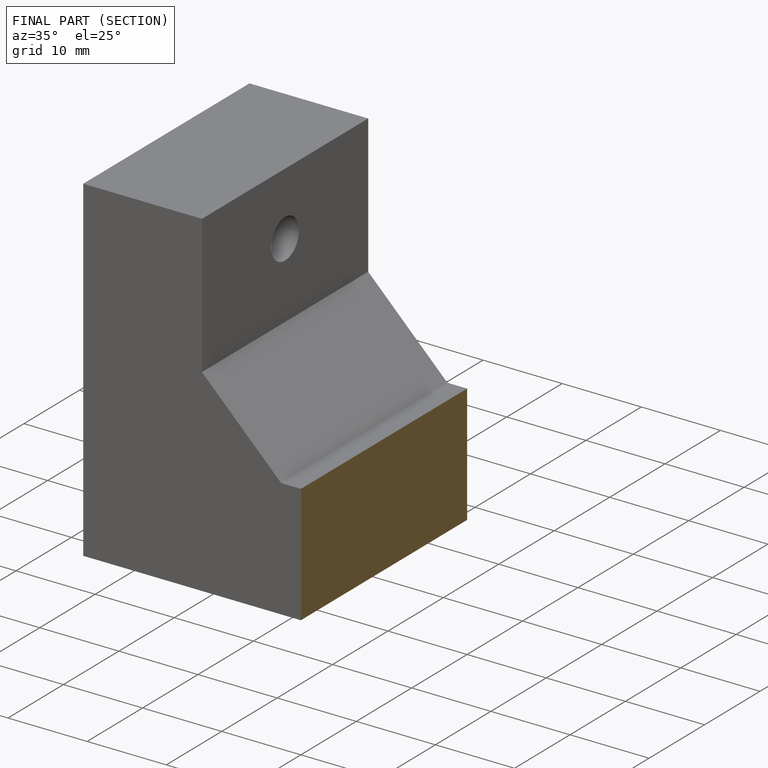
[diagram: finished part — half-section view (interior)]
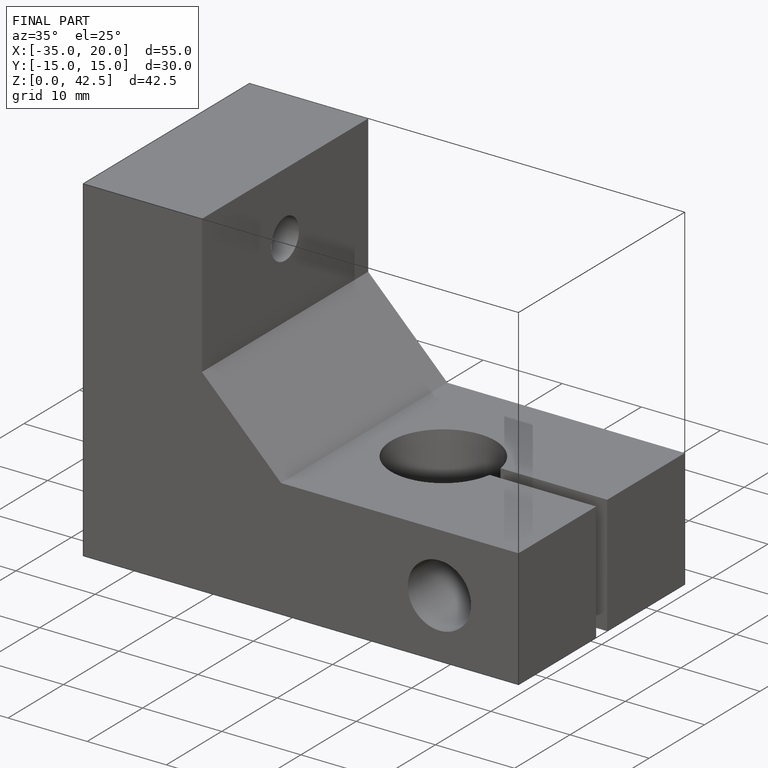
[diagram: finished part — iso view with bounding-box wireframe]
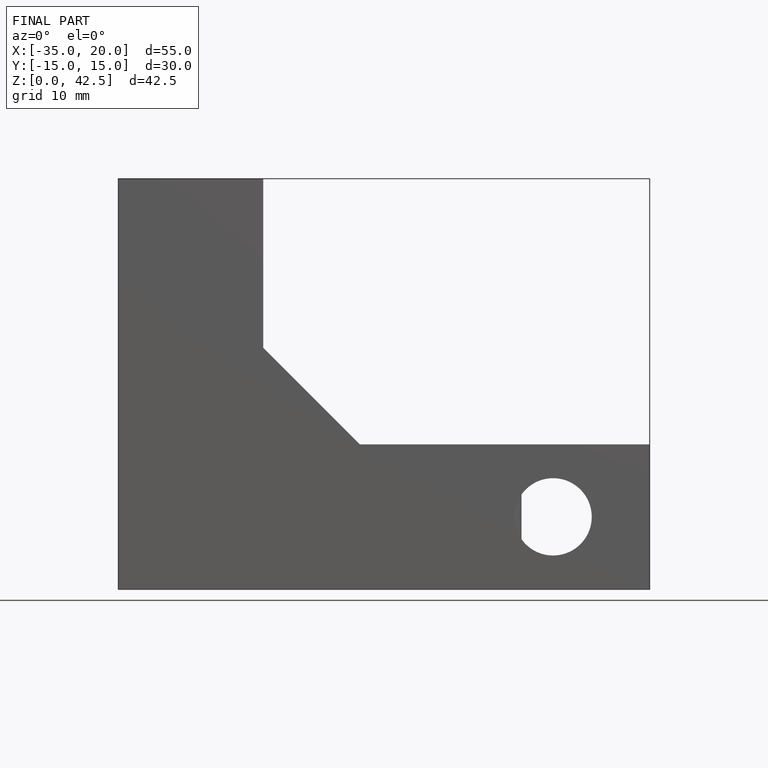
[diagram: finished part — front view with bounding-box wireframe]
